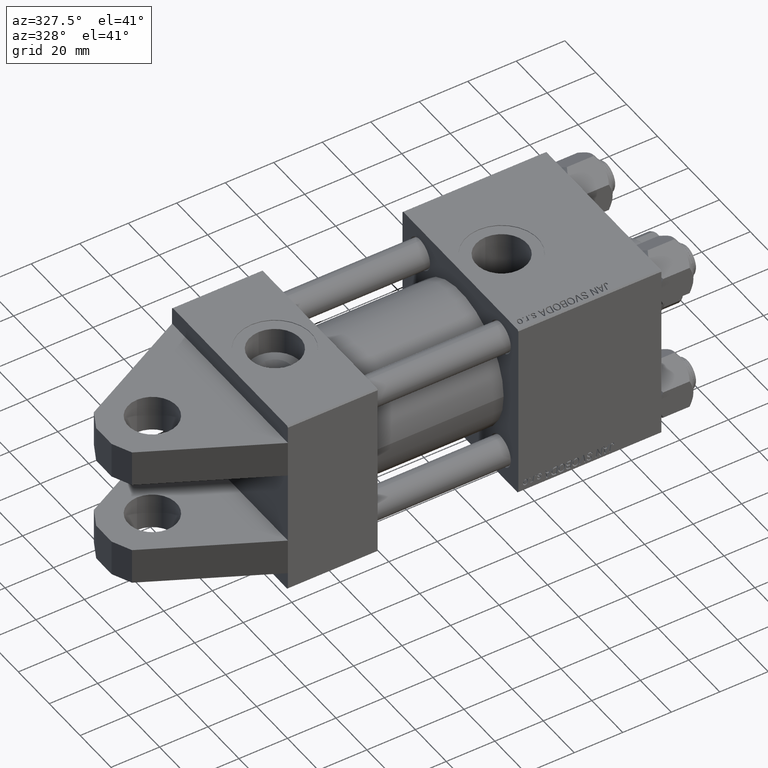
[diagram: clean part render]
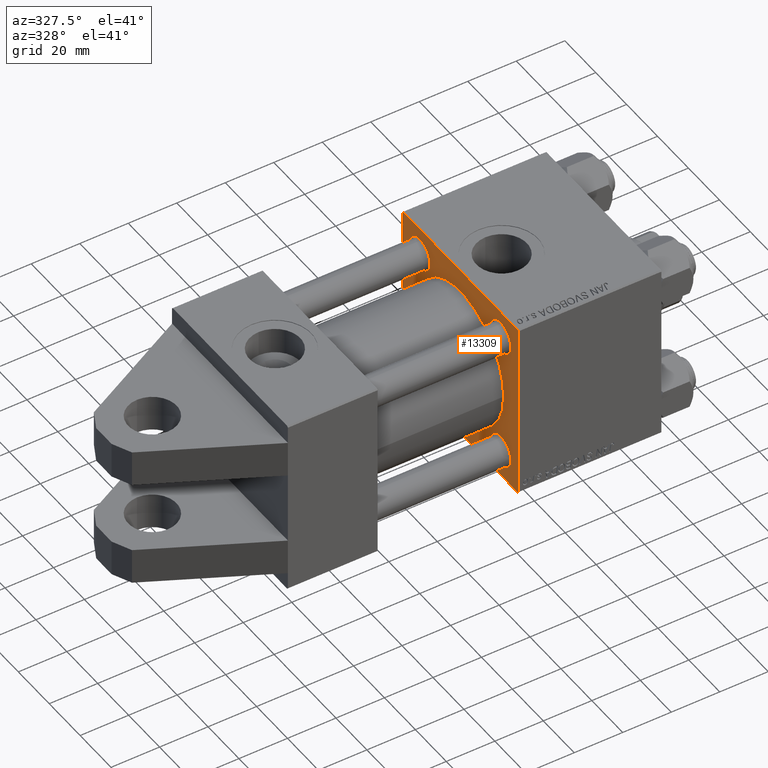
[diagram: same view with one face highlighted and labeled with its STEP entity id]
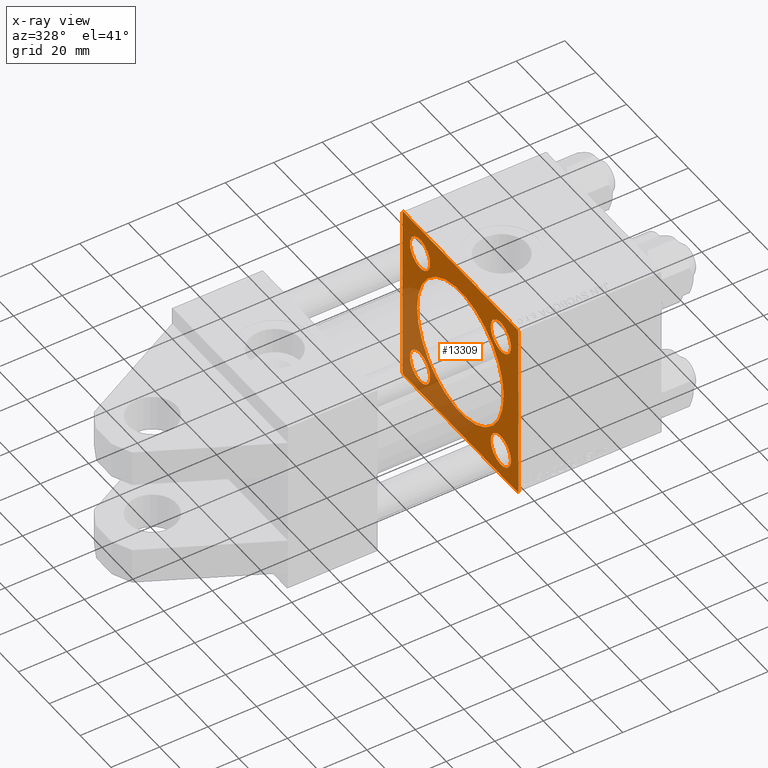
[diagram: x-ray of the same camera — body ghosted, the highlighted face saturated]
A machine part, auxiliary view. The second image highlights one B-rep face of the part: STEP entity #13309.
The next image is the same camera in x-ray: the body ghosted, the highlighted face saturated — about 30% of this face is hidden behind the body in this view.
In plain terms, the highlighted planar face has unit normal (-1, 0, 0).
Its self-contained STEP definition (entity closure, byte-faithful):
#494 = VERTEX_POINT ( 'NONE', #29434 ) ;
#630 = CIRCLE ( 'NONE', #27065, 6.500000000000002665 ) ;
#721 = DIRECTION ( 'NONE',  ( 0.000000000000000000, 0.000000000000000000, 1.000000000000000000 ) ) ;
#724 = DIRECTION ( 'NONE',  ( 1.000000000000000000, 0.000000000000000000, 0.000000000000000000 ) ) ;
#1741 = EDGE_CURVE ( 'NONE', #28567, #37164, #49238, .T. ) ;
#2035 = DIRECTION ( 'NONE',  ( -0.000000000000000000, -0.7071067811865425767, -0.7071067811865525687 ) ) ;
#2168 = CARTESIAN_POINT ( 'NONE',  ( 95.00000000000000000, 26.14999999999999858, -26.15000000000000213 ) ) ;
#2305 = EDGE_CURVE ( 'NONE', #25787, #13166, #45984, .T. ) ;
#2308 = VECTOR ( 'NONE', #48536, 1000.000000000000114 ) ;
#2314 = CARTESIAN_POINT ( 'NONE',  ( 95.00000000000000000, -37.50000000000000711, -37.00000000000000711 ) ) ;
#2332 = AXIS2_PLACEMENT_3D ( 'NONE', #23085, #4748, #3986 ) ;
#3121 = CIRCLE ( 'NONE', #8745, 6.500000000000008882 ) ;
#3139 = CARTESIAN_POINT ( 'NONE',  ( 95.00000000000000000, 37.50000000000000000, -37.50000000000000000 ) ) ;
#3183 = CARTESIAN_POINT ( 'NONE',  ( 95.00000000000000000, -26.15000000000000213, -19.64999999999999503 ) ) ;
#3641 = ORIENTED_EDGE ( 'NONE', *, *, #30691, .T. ) ;
#3766 = VERTEX_POINT ( 'NONE', #26946 ) ;
#3956 = CIRCLE ( 'NONE', #2332, 6.500000000000002665 ) ;
#3986 = DIRECTION ( 'NONE',  ( 0.000000000000000000, 0.000000000000000000, 1.000000000000000000 ) ) ;
#3991 = EDGE_LOOP ( 'NONE', ( #20273, #24516 ) ) ;
#4062 = VERTEX_POINT ( 'NONE', #2314 ) ;
#4291 = AXIS2_PLACEMENT_3D ( 'NONE', #45917, #724, #30846 ) ;
#4748 = DIRECTION ( 'NONE',  ( 1.000000000000000000, 0.000000000000000000, -0.000000000000000000 ) ) ;
#4831 = DIRECTION ( 'NONE',  ( 1.000000000000000000, 0.000000000000000000, -0.000000000000000000 ) ) ;
#4954 = EDGE_LOOP ( 'NONE', ( #20926, #11290 ) ) ;
#5004 = ORIENTED_EDGE ( 'NONE', *, *, #2305, .T. ) ;
#5367 = CIRCLE ( 'NONE', #23003, 6.500000000000002665 ) ;
#5574 = FACE_BOUND ( 'NONE', #41315, .T. ) ;
#5805 = CARTESIAN_POINT ( 'NONE',  ( 95.00000000000000000, 37.25000000000026290, -37.24999999999974420 ) ) ;
#6315 = DIRECTION ( 'NONE',  ( -0.000000000000000000, 0.7071067811865474617, 0.7071067811865474617 ) ) ;
#6800 = CARTESIAN_POINT ( 'NONE',  ( 95.00000000000000000, -37.24999999999997158, 37.24999999999997158 ) ) ;
#7468 = EDGE_CURVE ( 'NONE', #18700, #4062, #9359, .T. ) ;
#7622 = LINE ( 'NONE', #22693, #19533 ) ;
#7824 = ORIENTED_EDGE ( 'NONE', *, *, #23521, .T. ) ;
#8057 = CARTESIAN_POINT ( 'NONE',  ( 95.00000000000000000, -26.14999999999999147, 19.64999999999999147 ) ) ;
#8745 = AXIS2_PLACEMENT_3D ( 'NONE', #2168, #9960, #25515 ) ;
#9041 = EDGE_CURVE ( 'NONE', #18029, #47198, #32454, .T. ) ;
#9084 = DIRECTION ( 'NONE',  ( 0.000000000000000000, 0.000000000000000000, 1.000000000000000000 ) ) ;
#9094 = AXIS2_PLACEMENT_3D ( 'NONE', #9794, #28131, #18327 ) ;
#9333 = LINE ( 'NONE', #5805, #9448 ) ;
#9359 = LINE ( 'NONE', #24668, #40435 ) ;
#9448 = VECTOR ( 'NONE', #2035, 999.9999999999998863 ) ;
#9591 = FACE_BOUND ( 'NONE', #42853, .T. ) ;
#9794 = CARTESIAN_POINT ( 'NONE',  ( 95.00000000000000000, -3.469446951953614189E-15, 0.000000000000000000 ) ) ;
#9960 = DIRECTION ( 'NONE',  ( 1.000000000000000000, 0.000000000000000000, -0.000000000000000000 ) ) ;
#10062 = VERTEX_POINT ( 'NONE', #13065 ) ;
#10081 = LINE ( 'NONE', #6800, #40465 ) ;
#10445 = CARTESIAN_POINT ( 'NONE',  ( 95.00000000000000000, -26.15000000000000213, -26.15000000000000213 ) ) ;
#11290 = ORIENTED_EDGE ( 'NONE', *, *, #46912, .T. ) ;
#12380 = CARTESIAN_POINT ( 'NONE',  ( 95.00000000000000000, 26.14999999999999858, -32.65000000000001279 ) ) ;
#12445 = CARTESIAN_POINT ( 'NONE',  ( 95.00000000000000000, 26.14999999999999858, 32.65000000000001279 ) ) ;
#12691 = EDGE_LOOP ( 'NONE', ( #40328, #46654 ) ) ;
#13065 = CARTESIAN_POINT ( 'NONE',  ( 95.00000000000000000, 37.00000000000000000, -37.50000000000000000 ) ) ;
#13166 = VERTEX_POINT ( 'NONE', #12380 ) ;
#13230 = AXIS2_PLACEMENT_3D ( 'NONE', #19811, #35374, #721 ) ;
#13309 = ADVANCED_FACE ( 'NONE', ( #24399, #13602, #5574, #48007, #9591, #28655 ), #21124, .T. ) ;
#13602 = FACE_BOUND ( 'NONE', #4954, .T. ) ;
#13818 = CARTESIAN_POINT ( 'NONE',  ( 95.00000000000000000, 37.50000000000000000, 37.49999999999999289 ) ) ;
#14118 = DIRECTION ( 'NONE',  ( 0.000000000000000000, -1.000000000000000000, -1.850371707708594316E-16 ) ) ;
#14878 = ORIENTED_EDGE ( 'NONE', *, *, #28388, .T. ) ;
#15731 = CARTESIAN_POINT ( 'NONE',  ( 95.00000000000000000, -4.043591434102586818E-17, -28.00000000000000000 ) ) ;
#16138 = CARTESIAN_POINT ( 'NONE',  ( 95.00000000000000000, -26.14999999999999147, 26.14999999999999503 ) ) ;
#16575 = CARTESIAN_POINT ( 'NONE',  ( 95.00000000000000000, -26.15000000000000213, -32.65000000000001279 ) ) ;
#17127 = AXIS2_PLACEMENT_3D ( 'NONE', #16138, #4831, #43007 ) ;
#17965 = VERTEX_POINT ( 'NONE', #18415 ) ;
#17967 = DIRECTION ( 'NONE',  ( 0.000000000000000000, -1.000000000000000000, 0.000000000000000000 ) ) ;
#18029 = VERTEX_POINT ( 'NONE', #16575 ) ;
#18327 = DIRECTION ( 'NONE',  ( 0.000000000000000000, 0.000000000000000000, -1.000000000000000000 ) ) ;
#18352 = VECTOR ( 'NONE', #22097, 1000.000000000000000 ) ;
#18415 = CARTESIAN_POINT ( 'NONE',  ( 95.00000000000000000, 26.14999999999999858, 19.64999999999999858 ) ) ;
#18700 = VERTEX_POINT ( 'NONE', #41275 ) ;
#19317 = EDGE_CURVE ( 'NONE', #35147, #3766, #40747, .T. ) ;
#19533 = VECTOR ( 'NONE', #46038, 1000.000000000000000 ) ;
#19541 = EDGE_CURVE ( 'NONE', #3766, #26786, #48984, .T. ) ;
#19811 = CARTESIAN_POINT ( 'NONE',  ( 95.00000000000000000, -26.15000000000000213, -26.15000000000000213 ) ) ;
#20044 = DIRECTION ( 'NONE',  ( 0.000000000000000000, 0.000000000000000000, 1.000000000000000000 ) ) ;
#20273 = ORIENTED_EDGE ( 'NONE', *, *, #35592, .T. ) ;
#20839 = EDGE_CURVE ( 'NONE', #10062, #25815, #48875, .T. ) ;
#20926 = ORIENTED_EDGE ( 'NONE', *, *, #36364, .T. ) ;
#21124 = PLANE ( 'NONE',  #32611 ) ;
#21187 = CARTESIAN_POINT ( 'NONE',  ( 95.00000000000000000, -26.14999999999999147, 26.14999999999999503 ) ) ;
#22097 = DIRECTION ( 'NONE',  ( 0.000000000000000000, 0.000000000000000000, -1.000000000000000000 ) ) ;
#22145 = LINE ( 'NONE', #49031, #49298 ) ;
#22354 = CARTESIAN_POINT ( 'NONE',  ( 95.00000000000000000, 37.00000000000000000, 37.49999999999999289 ) ) ;
#22693 = CARTESIAN_POINT ( 'NONE',  ( 95.00000000000000000, -37.24999999999896261, -37.25000000000103029 ) ) ;
#23003 = AXIS2_PLACEMENT_3D ( 'NONE', #42636, #23547, #35106 ) ;
#23085 = CARTESIAN_POINT ( 'NONE',  ( 95.00000000000000000, 26.14999999999999858, 26.15000000000000213 ) ) ;
#23406 = EDGE_CURVE ( 'NONE', #33435, #30527, #23550, .T. ) ;
#23521 = EDGE_CURVE ( 'NONE', #30527, #33435, #28331, .T. ) ;
#23547 = DIRECTION ( 'NONE',  ( 1.000000000000000000, 0.000000000000000000, -0.000000000000000000 ) ) ;
#23550 = CIRCLE ( 'NONE', #9094, 28.00000000000000000 ) ;
#24399 = FACE_BOUND ( 'NONE', #12691, .T. ) ;
#24516 = ORIENTED_EDGE ( 'NONE', *, *, #9041, .T. ) ;
#24668 = CARTESIAN_POINT ( 'NONE',  ( 95.00000000000000000, -37.50000000000000000, 37.49999999999997868 ) ) ;
#24672 = CARTESIAN_POINT ( 'NONE',  ( 95.00000000000000000, -26.14999999999999147, 32.64999999999999858 ) ) ;
#25515 = DIRECTION ( 'NONE',  ( 0.000000000000000000, 0.000000000000000000, 1.000000000000000000 ) ) ;
#25787 = VERTEX_POINT ( 'NONE', #42975 ) ;
#25815 = VERTEX_POINT ( 'NONE', #43884 ) ;
#26231 = DIRECTION ( 'NONE',  ( 1.000000000000000000, 0.000000000000000000, -0.000000000000000000 ) ) ;
#26410 = EDGE_CURVE ( 'NONE', #35147, #494, #22145, .T. ) ;
#26514 = EDGE_LOOP ( 'NONE', ( #41079, #14878, #43018, #3641, #46296, #42925, #36186, #27522 ) ) ;
#26786 = VERTEX_POINT ( 'NONE', #40931 ) ;
#26946 = CARTESIAN_POINT ( 'NONE',  ( 95.00000000000000000, 37.50000000000000000, 36.99999999999999289 ) ) ;
#27065 = AXIS2_PLACEMENT_3D ( 'NONE', #21187, #47328, #43318 ) ;
#27522 = ORIENTED_EDGE ( 'NONE', *, *, #42642, .T. ) ;
#27552 = CARTESIAN_POINT ( 'NONE',  ( 95.00000000000000000, 26.14999999999999858, -26.15000000000000213 ) ) ;
#28131 = DIRECTION ( 'NONE',  ( 1.000000000000000000, 0.000000000000000000, 0.000000000000000000 ) ) ;
#28331 = CIRCLE ( 'NONE', #4291, 28.00000000000000000 ) ;
#28388 = EDGE_CURVE ( 'NONE', #25815, #4062, #7622, .T. ) ;
#28567 = VERTEX_POINT ( 'NONE', #24672 ) ;
#28655 = FACE_OUTER_BOUND ( 'NONE', #26514, .T. ) ;
#29434 = CARTESIAN_POINT ( 'NONE',  ( 95.00000000000000000, -36.99999999999997158, 37.49999999999997868 ) ) ;
#30527 = VERTEX_POINT ( 'NONE', #40778 ) ;
#30691 = EDGE_CURVE ( 'NONE', #18700, #494, #10081, .T. ) ;
#30846 = DIRECTION ( 'NONE',  ( 0.000000000000000000, 0.000000000000000000, -1.000000000000000000 ) ) ;
#31071 = DIRECTION ( 'NONE',  ( 1.000000000000000000, 0.000000000000000000, -0.000000000000000000 ) ) ;
#31547 = AXIS2_PLACEMENT_3D ( 'NONE', #27552, #31071, #20044 ) ;
#32454 = CIRCLE ( 'NONE', #13230, 6.500000000000008882 ) ;
#32611 = AXIS2_PLACEMENT_3D ( 'NONE', #36201, #39730, #9084 ) ;
#33435 = VERTEX_POINT ( 'NONE', #15731 ) ;
#35106 = DIRECTION ( 'NONE',  ( 0.000000000000000000, 0.000000000000000000, 1.000000000000000000 ) ) ;
#35147 = VERTEX_POINT ( 'NONE', #22354 ) ;
#35374 = DIRECTION ( 'NONE',  ( 1.000000000000000000, 0.000000000000000000, -0.000000000000000000 ) ) ;
#35592 = EDGE_CURVE ( 'NONE', #47198, #18029, #46228, .T. ) ;
#36186 = ORIENTED_EDGE ( 'NONE', *, *, #19541, .T. ) ;
#36201 = CARTESIAN_POINT ( 'NONE',  ( 95.00000000000000000, 0.000000000000000000, 0.000000000000000000 ) ) ;
#36364 = EDGE_CURVE ( 'NONE', #38227, #17965, #5367, .T. ) ;
#37164 = VERTEX_POINT ( 'NONE', #8057 ) ;
#37405 = AXIS2_PLACEMENT_3D ( 'NONE', #10445, #26231, #49367 ) ;
#37464 = CARTESIAN_POINT ( 'NONE',  ( 95.00000000000000000, 37.25000000000000000, 37.25000000000000000 ) ) ;
#38227 = VERTEX_POINT ( 'NONE', #12445 ) ;
#39268 = VECTOR ( 'NONE', #17967, 1000.000000000000000 ) ;
#39730 = DIRECTION ( 'NONE',  ( -1.000000000000000000, -0.000000000000000000, 0.000000000000000000 ) ) ;
#40328 = ORIENTED_EDGE ( 'NONE', *, *, #1741, .T. ) ;
#40435 = VECTOR ( 'NONE', #48032, 1000.000000000000000 ) ;
#40465 = VECTOR ( 'NONE', #6315, 1000.000000000000114 ) ;
#40747 = LINE ( 'NONE', #37464, #2308 ) ;
#40778 = CARTESIAN_POINT ( 'NONE',  ( 95.00000000000000000, -3.469446951953614189E-15, 28.00000000000000000 ) ) ;
#40931 = CARTESIAN_POINT ( 'NONE',  ( 95.00000000000000000, 37.50000000000000000, -36.99999999999999289 ) ) ;
#41079 = ORIENTED_EDGE ( 'NONE', *, *, #20839, .T. ) ;
#41275 = CARTESIAN_POINT ( 'NONE',  ( 95.00000000000000000, -37.50000000000000000, 36.99999999999995026 ) ) ;
#41315 = EDGE_LOOP ( 'NONE', ( #5004, #45813 ) ) ;
#42398 = EDGE_CURVE ( 'NONE', #37164, #28567, #630, .T. ) ;
#42636 = CARTESIAN_POINT ( 'NONE',  ( 95.00000000000000000, 26.14999999999999858, 26.15000000000000213 ) ) ;
#42642 = EDGE_CURVE ( 'NONE', #26786, #10062, #9333, .T. ) ;
#42853 = EDGE_LOOP ( 'NONE', ( #7824, #48172 ) ) ;
#42925 = ORIENTED_EDGE ( 'NONE', *, *, #19317, .T. ) ;
#42975 = CARTESIAN_POINT ( 'NONE',  ( 95.00000000000000000, 26.14999999999999858, -19.64999999999999503 ) ) ;
#43007 = DIRECTION ( 'NONE',  ( 0.000000000000000000, 0.000000000000000000, 1.000000000000000000 ) ) ;
#43018 = ORIENTED_EDGE ( 'NONE', *, *, #7468, .F. ) ;
#43318 = DIRECTION ( 'NONE',  ( 0.000000000000000000, 0.000000000000000000, 1.000000000000000000 ) ) ;
#43884 = CARTESIAN_POINT ( 'NONE',  ( 95.00000000000000000, -36.99999999999998579, -37.50000000000000000 ) ) ;
#45286 = EDGE_CURVE ( 'NONE', #13166, #25787, #3121, .T. ) ;
#45813 = ORIENTED_EDGE ( 'NONE', *, *, #45286, .T. ) ;
#45917 = CARTESIAN_POINT ( 'NONE',  ( 95.00000000000000000, -3.469446951953614189E-15, 0.000000000000000000 ) ) ;
#45984 = CIRCLE ( 'NONE', #31547, 6.500000000000008882 ) ;
#46038 = DIRECTION ( 'NONE',  ( 0.000000000000000000, -0.7071067811865671127, 0.7071067811865279218 ) ) ;
#46228 = CIRCLE ( 'NONE', #37405, 6.500000000000008882 ) ;
#46296 = ORIENTED_EDGE ( 'NONE', *, *, #26410, .F. ) ;
#46654 = ORIENTED_EDGE ( 'NONE', *, *, #42398, .T. ) ;
#46912 = EDGE_CURVE ( 'NONE', #17965, #38227, #3956, .T. ) ;
#47198 = VERTEX_POINT ( 'NONE', #3183 ) ;
#47328 = DIRECTION ( 'NONE',  ( 1.000000000000000000, 0.000000000000000000, -0.000000000000000000 ) ) ;
#48007 = FACE_BOUND ( 'NONE', #3991, .T. ) ;
#48032 = DIRECTION ( 'NONE',  ( 0.000000000000000000, -9.251858538542972814E-17, -1.000000000000000000 ) ) ;
#48172 = ORIENTED_EDGE ( 'NONE', *, *, #23406, .T. ) ;
#48536 = DIRECTION ( 'NONE',  ( 0.000000000000000000, 0.7071067811865474617, -0.7071067811865474617 ) ) ;
#48875 = LINE ( 'NONE', #3139, #39268 ) ;
#48984 = LINE ( 'NONE', #13818, #18352 ) ;
#49031 = CARTESIAN_POINT ( 'NONE',  ( 95.00000000000000000, 37.50000000000000000, 37.49999999999999289 ) ) ;
#49238 = CIRCLE ( 'NONE', #17127, 6.500000000000002665 ) ;
#49298 = VECTOR ( 'NONE', #14118, 1000.000000000000000 ) ;
#49367 = DIRECTION ( 'NONE',  ( 0.000000000000000000, 0.000000000000000000, 1.000000000000000000 ) ) ;